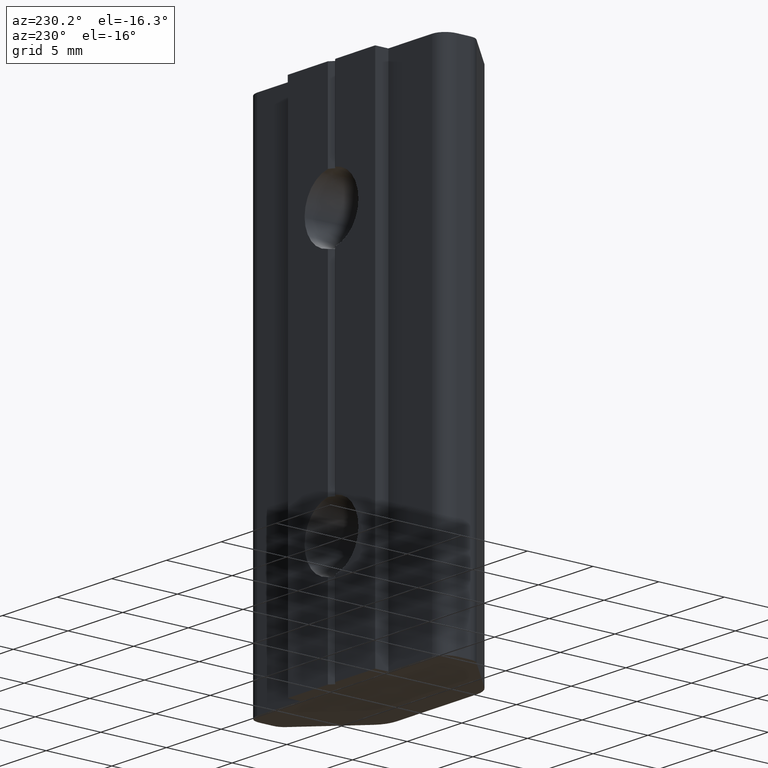
[diagram: clean part render]
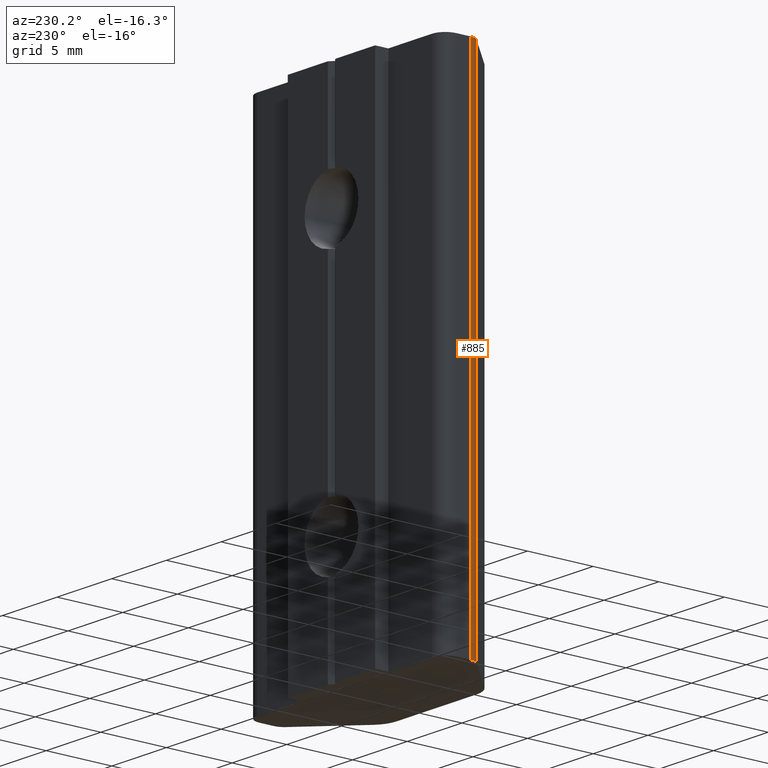
[diagram: same view with one face highlighted and labeled with its STEP entity id]
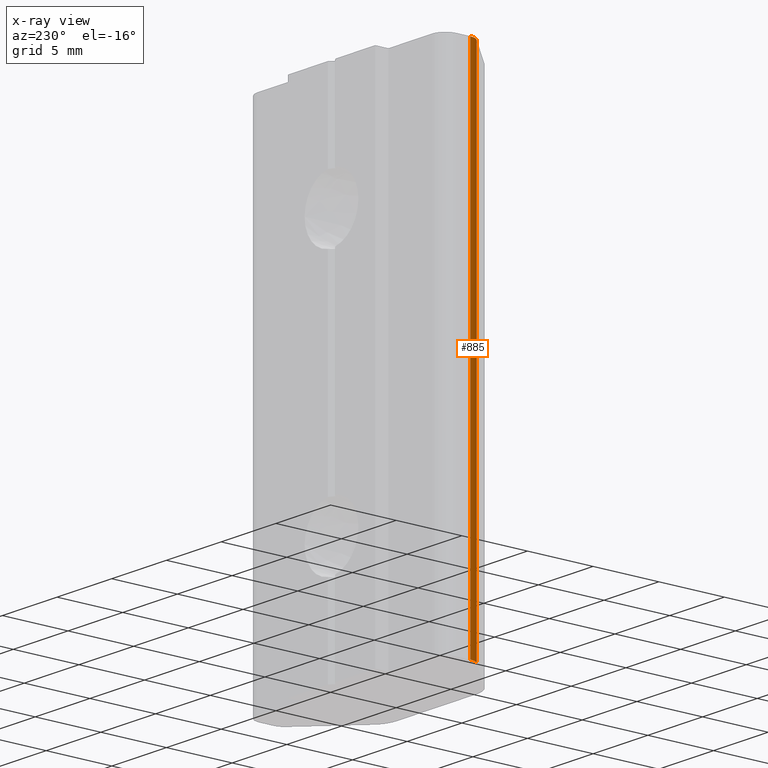
[diagram: x-ray of the same camera — body ghosted, the highlighted face saturated]
A machine part, auxiliary view. The second image highlights one B-rep face of the part: STEP entity #885.
The next image is the same camera in x-ray: the body ghosted, the highlighted face saturated — about 0% of this face is hidden behind the body in this view.
In plain terms, the highlighted cylindrical surface (edge-blend (fillet) strip) has radius 1 mm, axis along (0, 0, 1).
Its self-contained STEP definition (entity closure, byte-faithful):
#514=CARTESIAN_POINT('',(-8.488768644028738,0.957350393001747,-19.0));
#515=VERTEX_POINT('',#514);
#522=CARTESIAN_POINT('',(-8.781661864028735,1.664457173001751,-19.0));
#523=VERTEX_POINT('',#522);
#524=CARTESIAN_POINT('',(-7.781661877038335,1.664457169986085,-19.0));
#525=DIRECTION('',(0.0,0.0,1.0));
#526=DIRECTION('',(1.0,-3.015666E-009,0.0));
#527=AXIS2_PLACEMENT_3D('',#524,#525,#526);
#528=CIRCLE('',#527,0.999999986990400);
#529=EDGE_CURVE('',#523,#515,#528,.T.);
#842=CARTESIAN_POINT('',(-8.488768644028738,0.957350393001747,19.0));
#843=VERTEX_POINT('',#842);
#850=CARTESIAN_POINT('',(-8.488768644028738,0.957350393001747,19.0));
#851=DIRECTION('',(0.0,0.0,-1.0));
#852=VECTOR('',#851,38.0);
#853=LINE('',#850,#852);
#854=EDGE_CURVE('',#843,#515,#853,.T.);
#861=CARTESIAN_POINT('',(-7.781661877038335,1.664457169986085,0.0));
#862=DIRECTION('',(0.0,0.0,1.0));
#863=DIRECTION('',(1.0,-3.015666E-009,0.0));
#864=AXIS2_PLACEMENT_3D('',#861,#862,#863);
#865=CYLINDRICAL_SURFACE('',#864,0.999999986990400);
#866=CARTESIAN_POINT('',(-8.781661864028735,1.664457173001751,19.0));
#867=VERTEX_POINT('',#866);
#868=CARTESIAN_POINT('',(-7.781661877038335,1.664457169986085,19.0));
#869=DIRECTION('',(0.0,0.0,-1.0));
#870=DIRECTION('',(1.0,-3.015666E-009,0.0));
#871=AXIS2_PLACEMENT_3D('',#868,#869,#870);
#872=CIRCLE('',#871,0.999999986990400);
#873=EDGE_CURVE('',#843,#867,#872,.T.);
#874=ORIENTED_EDGE('',*,*,#873,.T.);
#875=CARTESIAN_POINT('',(-8.781661864028735,1.664457173001751,19.0));
#876=DIRECTION('',(0.0,0.0,-1.0));
#877=VECTOR('',#876,38.0);
#878=LINE('',#875,#877);
#879=EDGE_CURVE('',#867,#523,#878,.T.);
#880=ORIENTED_EDGE('',*,*,#879,.T.);
#881=ORIENTED_EDGE('',*,*,#529,.T.);
#882=ORIENTED_EDGE('',*,*,#854,.F.);
#883=EDGE_LOOP('',(#874,#880,#881,#882));
#884=FACE_OUTER_BOUND('',#883,.T.);
#885=ADVANCED_FACE('',(#884),#865,.T.);